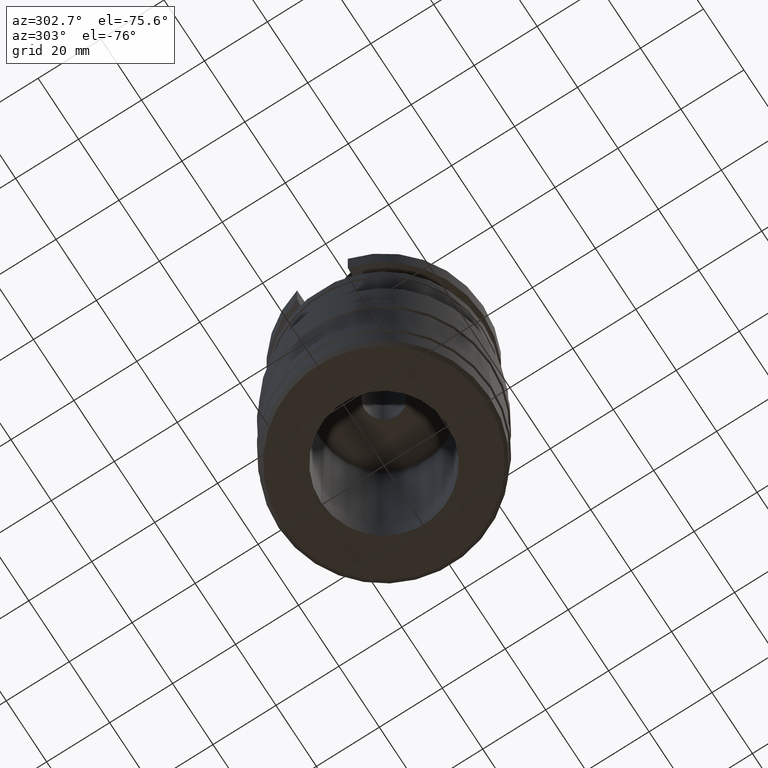
[diagram: clean part render]
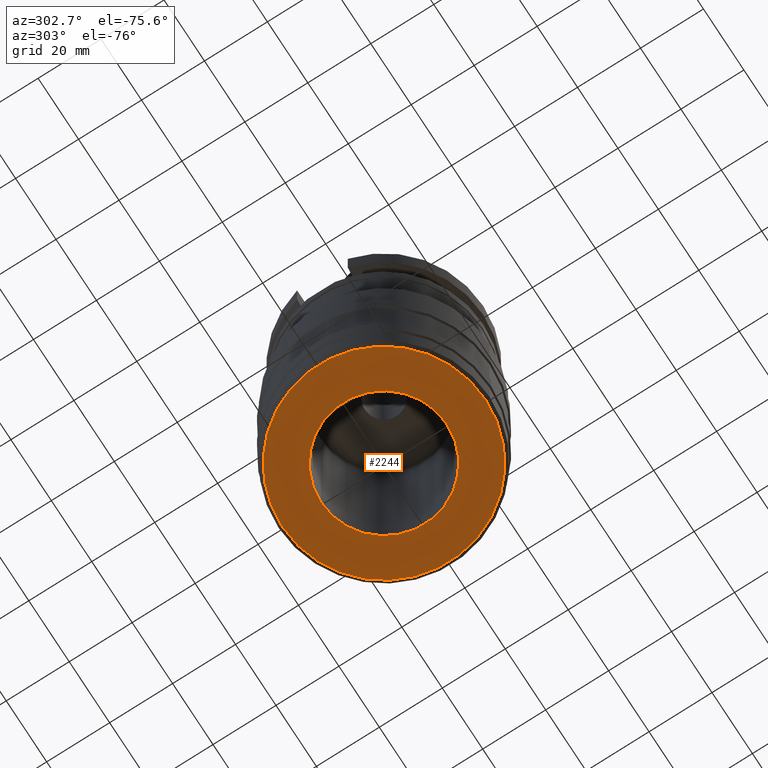
[diagram: same view with one face highlighted and labeled with its STEP entity id]
A machine part, auxiliary view. The second image highlights one B-rep face of the part: STEP entity #2244.
In plain terms, the highlighted planar face has unit normal (0, 0, -1).
Its self-contained STEP definition (entity closure, byte-faithful):
#1005=CARTESIAN_POINT('',(0.E0,0.E0,-1.05E2));
#1006=DIRECTION('',(0.E0,0.E0,1.E0));
#1007=DIRECTION('',(0.E0,-1.E0,0.E0));
#1008=AXIS2_PLACEMENT_3D('',#1005,#1006,#1007);
#1013=CARTESIAN_POINT('',(0.E0,0.E0,-1.05E2));
#1014=DIRECTION('',(0.E0,0.E0,1.E0));
#1015=DIRECTION('',(0.E0,1.E0,0.E0));
#1016=AXIS2_PLACEMENT_3D('',#1013,#1014,#1015);
#1021=CARTESIAN_POINT('',(0.E0,2.129905713077E-14,-1.05E2));
#1022=DIRECTION('',(0.E0,0.E0,-1.E0));
#1023=DIRECTION('',(0.E0,-1.E0,0.E0));
#1024=AXIS2_PLACEMENT_3D('',#1021,#1022,#1023);
#1029=CARTESIAN_POINT('',(0.E0,2.129905713077E-14,-1.05E2));
#1030=DIRECTION('',(0.E0,0.E0,-1.E0));
#1031=DIRECTION('',(0.E0,1.E0,0.E0));
#1032=AXIS2_PLACEMENT_3D('',#1029,#1030,#1031);
#1309=CARTESIAN_POINT('',(0.E0,2.E1,-1.05E2));
#1310=VERTEX_POINT('',#1309);
#1311=CARTESIAN_POINT('',(0.E0,-2.E1,-1.05E2));
#1312=VERTEX_POINT('',#1311);
#1313=CARTESIAN_POINT('',(0.E0,-3.23285E1,-1.05E2));
#1314=CARTESIAN_POINT('',(0.E0,3.23285E1,-1.05E2));
#1315=VERTEX_POINT('',#1313);
#1316=VERTEX_POINT('',#1314);
#2229=CARTESIAN_POINT('',(0.E0,0.E0,-1.05E2));
#2230=DIRECTION('',(0.E0,0.E0,-1.E0));
#2231=DIRECTION('',(0.E0,-1.E0,0.E0));
#2232=AXIS2_PLACEMENT_3D('',#2229,#2230,#2231);
#2233=PLANE('',#2232);
#2234=ORIENTED_EDGE('',*,*,#2208,.T.);
#2235=ORIENTED_EDGE('',*,*,#2224,.T.);
#2236=EDGE_LOOP('',(#2234,#2235));
#2237=FACE_OUTER_BOUND('',#2236,.F.);
#2239=ORIENTED_EDGE('',*,*,#2238,.T.);
#2241=ORIENTED_EDGE('',*,*,#2240,.T.);
#2242=EDGE_LOOP('',(#2239,#2241));
#2243=FACE_BOUND('',#2242,.F.);
#1009=CIRCLE('',#1008,3.23285E1);
#1017=CIRCLE('',#1016,3.23285E1);
#1025=CIRCLE('',#1024,2.E1);
#1033=CIRCLE('',#1032,2.E1);
#2208=EDGE_CURVE('',#1315,#1316,#1009,.T.);
#2224=EDGE_CURVE('',#1316,#1315,#1017,.T.);
#2238=EDGE_CURVE('',#1312,#1310,#1025,.T.);
#2240=EDGE_CURVE('',#1310,#1312,#1033,.T.);
#2244=ADVANCED_FACE('',(#2237,#2243),#2233,.T.);